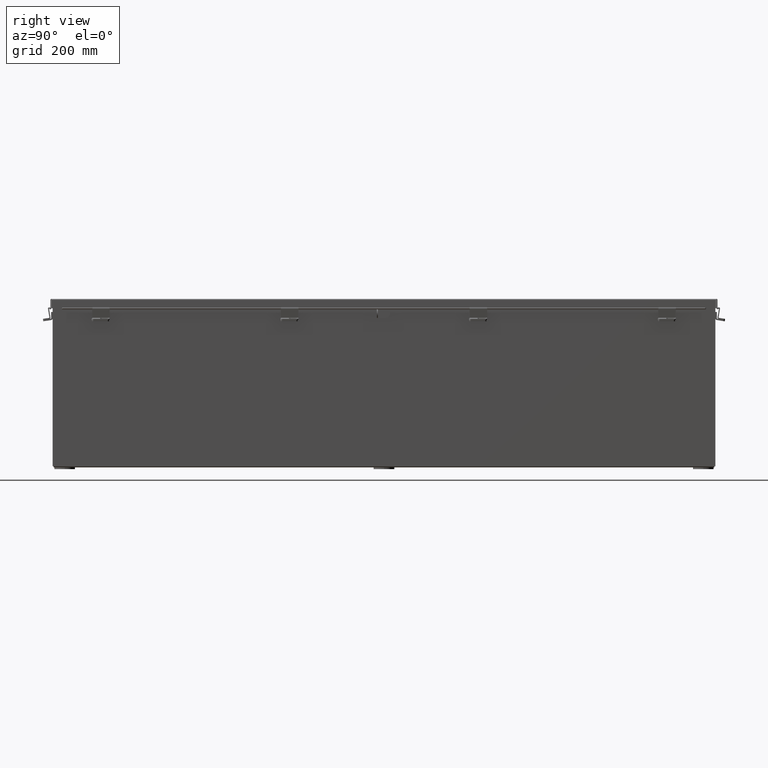
[diagram: clean part render]
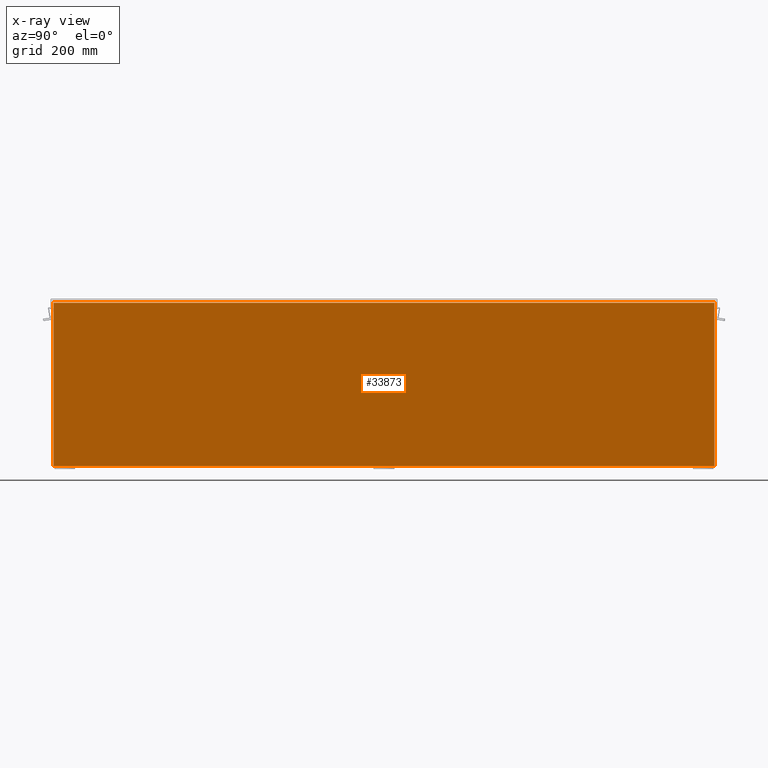
[diagram: x-ray — body ghosted, one internal face saturated and labeled with its STEP entity id]
A machine part, right view, then the same camera in x-ray: the body is ghosted and one INTERNAL B-rep face — a face not visible from any outside direction — is saturated and labeled: STEP entity #33873.
In plain terms, the highlighted planar face has unit normal (-1, 0, 0).
Its self-contained STEP definition (entity closure, byte-faithful):
#2768 = VERTEX_POINT ( 'NONE', #32862 ) ;
#5894 = VECTOR ( 'NONE', #20070, 39.37007874015748100 ) ;
#8062 = PLANE ( 'NONE',  #17701 ) ;
#8344 = VECTOR ( 'NONE', #35954, 39.37007874015748100 ) ;
#8764 = CARTESIAN_POINT ( 'NONE',  ( 5.925299999999998200, -23.92529999999998900, 0.0000000000000000000 ) ) ;
#9593 = EDGE_LOOP ( 'NONE', ( #20628, #22771, #20807, #27822 ) ) ;
#11150 = CARTESIAN_POINT ( 'NONE',  ( 5.925299999999998200, -23.92529999999998900, 0.01300000000000011600 ) ) ;
#11602 = LINE ( 'NONE', #8764, #5894 ) ;
#11636 = VERTEX_POINT ( 'NONE', #31774 ) ;
#13739 = DIRECTION ( 'NONE',  ( 3.503965158194251300E-015, 0.0000000000000000000, 1.000000000000000000 ) ) ;
#14009 = DIRECTION ( 'NONE',  ( -8.001822495251853600E-032, 1.000000000000000000, -2.283647848649142500E-017 ) ) ;
#15432 = VERTEX_POINT ( 'NONE', #26355 ) ;
#15644 = LINE ( 'NONE', #11150, #29642 ) ;
#17206 = VERTEX_POINT ( 'NONE', #18019 ) ;
#17701 = AXIS2_PLACEMENT_3D ( 'NONE', #36015, #30493, #13739 ) ;
#17705 = EDGE_CURVE ( 'NONE', #15432, #17206, #30078, .T. ) ;
#18019 = CARTESIAN_POINT ( 'NONE',  ( 5.925300000000040000, -23.92529999999998900, 11.83759999999999800 ) ) ;
#20070 = DIRECTION ( 'NONE',  ( -3.503965158194252100E-015, -0.0000000000000000000, -1.000000000000000000 ) ) ;
#20628 = ORIENTED_EDGE ( 'NONE', *, *, #34046, .F. ) ;
#20807 = ORIENTED_EDGE ( 'NONE', *, *, #29006, .F. ) ;
#22620 = VECTOR ( 'NONE', #31442, 39.37007874015748100 ) ;
#22771 = ORIENTED_EDGE ( 'NONE', *, *, #17705, .F. ) ;
#23402 = EDGE_CURVE ( 'NONE', #2768, #11636, #15644, .T. ) ;
#25843 = CARTESIAN_POINT ( 'NONE',  ( 5.925300000000040000, 23.92529999999998900, 11.83759999999999800 ) ) ;
#26355 = CARTESIAN_POINT ( 'NONE',  ( 5.925300000000040000, 23.92529999999998900, 11.83759999999999800 ) ) ;
#27822 = ORIENTED_EDGE ( 'NONE', *, *, #23402, .F. ) ;
#29006 = EDGE_CURVE ( 'NONE', #11636, #15432, #30711, .T. ) ;
#29642 = VECTOR ( 'NONE', #14009, 39.37007874015748100 ) ;
#30078 = LINE ( 'NONE', #25843, #22620 ) ;
#30493 = DIRECTION ( 'NONE',  ( -1.000000000000000000, 0.0000000000000000000, 3.503965158194251300E-015 ) ) ;
#30711 = LINE ( 'NONE', #33139, #8344 ) ;
#31442 = DIRECTION ( 'NONE',  ( -0.0000000000000000000, -1.000000000000000000, -0.0000000000000000000 ) ) ;
#31774 = CARTESIAN_POINT ( 'NONE',  ( 5.925299999999998200, 23.92529999999998900, 0.01299999999999956900 ) ) ;
#32676 = FACE_OUTER_BOUND ( 'NONE', #9593, .T. ) ;
#32862 = CARTESIAN_POINT ( 'NONE',  ( 5.925299999999998200, -23.92529999999998900, 0.01299999999999956900 ) ) ;
#33139 = CARTESIAN_POINT ( 'NONE',  ( 5.925300000000040000, 23.92529999999998900, 11.85060000000000000 ) ) ;
#33873 = ADVANCED_FACE ( 'NONE', ( #32676 ), #8062, .T. ) ;
#34046 = EDGE_CURVE ( 'NONE', #17206, #2768, #11602, .T. ) ;
#35954 = DIRECTION ( 'NONE',  ( 3.503965158194252100E-015, -3.688384377046581100E-016, 1.000000000000000000 ) ) ;
#36015 = CARTESIAN_POINT ( 'NONE',  ( 5.925299999999998200, 0.0000000000000000000, -2.102669252623462500E-014 ) ) ;